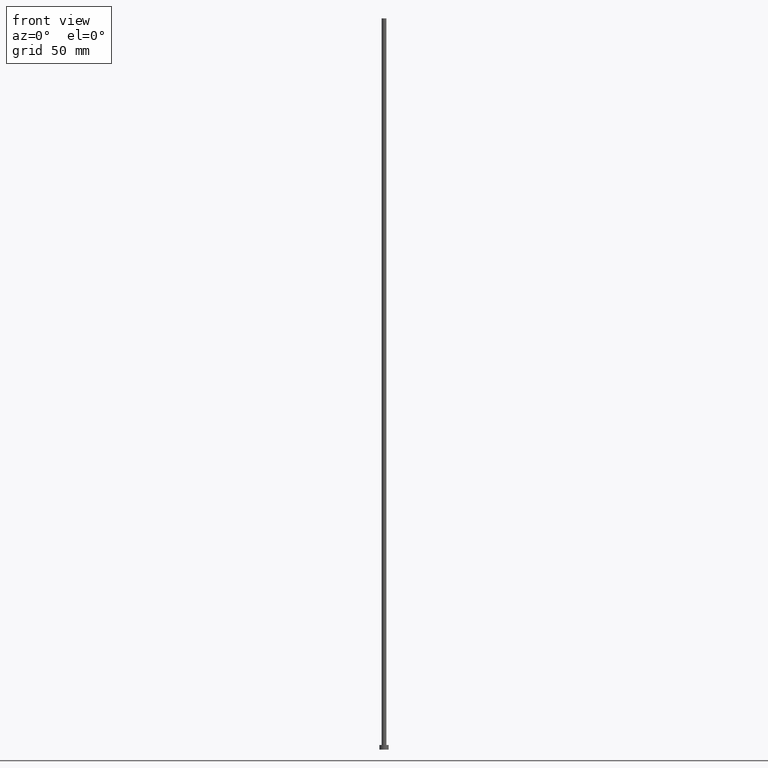
[diagram: clean part render]
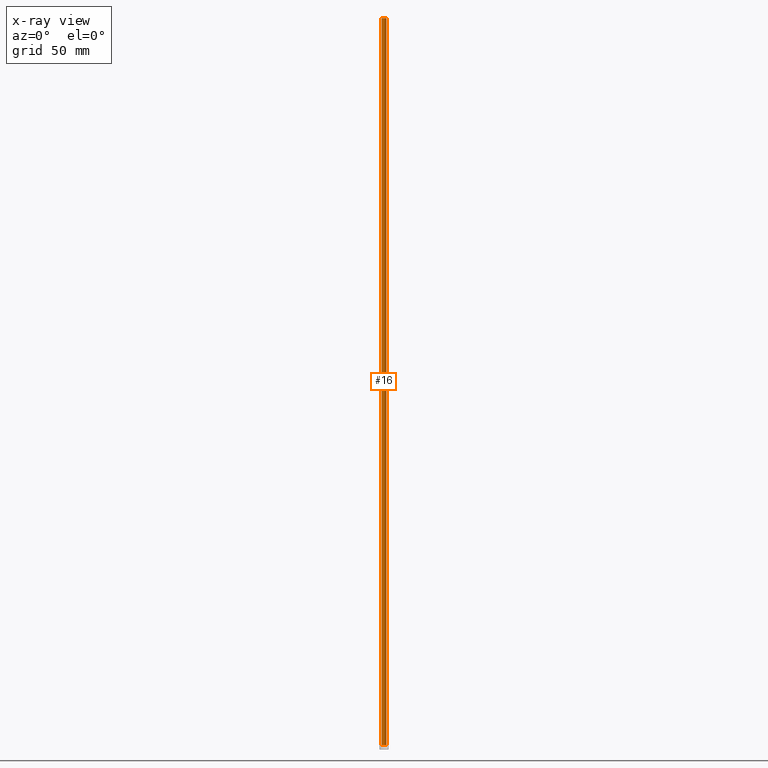
[diagram: x-ray — body ghosted, one internal face saturated and labeled with its STEP entity id]
A machine part, front view, then the same camera in x-ray: the body is ghosted and one INTERNAL B-rep face — a face not visible from any outside direction — is saturated and labeled: STEP entity #16.
In plain terms, the highlighted cylindrical surface (edge-blend (fillet) strip) has radius 1 mm, axis along (-0, -0, -1).
Its self-contained STEP definition (entity closure, byte-faithful):
#6 = CARTESIAN_POINT ( 'NONE',  ( 1.000000000000000000, 1.224646799147353207E-16, 2.000000000000000000 ) ) ;
#8 = CARTESIAN_POINT ( 'NONE',  ( 0.000000000000000000, 0.000000000000000000, 315.0000000000000000 ) ) ;
#10 = EDGE_CURVE ( 'NONE', #113, #236, #151, .T. ) ;
#16 = ADVANCED_FACE ( 'NONE', ( #213 ), #40, .T. ) ;
#20 = VERTEX_POINT ( 'NONE', #157 ) ;
#25 = VECTOR ( 'NONE', #178, 1000.000000000000000 ) ;
#26 = CARTESIAN_POINT ( 'NONE',  ( -1.000000000000000000, 0.000000000000000000, 315.0000000000000000 ) ) ;
#40 = CYLINDRICAL_SURFACE ( 'NONE', #88, 1.000000000000000000 ) ;
#58 = EDGE_CURVE ( 'NONE', #67, #236, #220, .T. ) ;
#67 = VERTEX_POINT ( 'NONE', #26 ) ;
#68 = CARTESIAN_POINT ( 'NONE',  ( 0.000000000000000000, 0.000000000000000000, 315.0000000000000000 ) ) ;
#79 = CARTESIAN_POINT ( 'NONE',  ( -1.000000000000000000, 0.000000000000000000, 2.000000000000000000 ) ) ;
#82 = DIRECTION ( 'NONE',  ( 1.000000000000000000, 0.000000000000000000, 0.000000000000000000 ) ) ;
#88 = AXIS2_PLACEMENT_3D ( 'NONE', #68, #200, #120 ) ;
#94 = ORIENTED_EDGE ( 'NONE', *, *, #58, .F. ) ;
#102 = LINE ( 'NONE', #249, #25 ) ;
#111 = ORIENTED_EDGE ( 'NONE', *, *, #132, .F. ) ;
#112 = AXIS2_PLACEMENT_3D ( 'NONE', #8, #163, #162 ) ;
#113 = VERTEX_POINT ( 'NONE', #6 ) ;
#118 = DIRECTION ( 'NONE',  ( -0.000000000000000000, -0.000000000000000000, -1.000000000000000000 ) ) ;
#120 = DIRECTION ( 'NONE',  ( -1.000000000000000000, 0.000000000000000000, 0.000000000000000000 ) ) ;
#132 = EDGE_CURVE ( 'NONE', #20, #67, #224, .T. ) ;
#145 = VECTOR ( 'NONE', #118, 1000.000000000000000 ) ;
#150 = EDGE_LOOP ( 'NONE', ( #111, #175, #155, #94 ) ) ;
#151 = CIRCLE ( 'NONE', #205, 1.000000000000000000 ) ;
#155 = ORIENTED_EDGE ( 'NONE', *, *, #10, .T. ) ;
#157 = CARTESIAN_POINT ( 'NONE',  ( 1.000000000000000000, 1.224646799147353207E-16, 315.0000000000000000 ) ) ;
#162 = DIRECTION ( 'NONE',  ( 1.000000000000000000, 0.000000000000000000, 0.000000000000000000 ) ) ;
#163 = DIRECTION ( 'NONE',  ( 0.000000000000000000, 0.000000000000000000, 1.000000000000000000 ) ) ;
#169 = DIRECTION ( 'NONE',  ( 0.000000000000000000, 0.000000000000000000, 1.000000000000000000 ) ) ;
#175 = ORIENTED_EDGE ( 'NONE', *, *, #221, .T. ) ;
#178 = DIRECTION ( 'NONE',  ( -0.000000000000000000, -0.000000000000000000, -1.000000000000000000 ) ) ;
#191 = CARTESIAN_POINT ( 'NONE',  ( 0.000000000000000000, 0.000000000000000000, 2.000000000000000000 ) ) ;
#200 = DIRECTION ( 'NONE',  ( -0.000000000000000000, -0.000000000000000000, -1.000000000000000000 ) ) ;
#205 = AXIS2_PLACEMENT_3D ( 'NONE', #191, #169, #82 ) ;
#213 = FACE_OUTER_BOUND ( 'NONE', #150, .T. ) ;
#220 = LINE ( 'NONE', #223, #145 ) ;
#221 = EDGE_CURVE ( 'NONE', #20, #113, #102, .T. ) ;
#223 = CARTESIAN_POINT ( 'NONE',  ( -1.000000000000000000, 0.000000000000000000, 315.0000000000000000 ) ) ;
#224 = CIRCLE ( 'NONE', #112, 1.000000000000000000 ) ;
#236 = VERTEX_POINT ( 'NONE', #79 ) ;
#249 = CARTESIAN_POINT ( 'NONE',  ( 1.000000000000000000, 1.224646799147353207E-16, 315.0000000000000000 ) ) ;